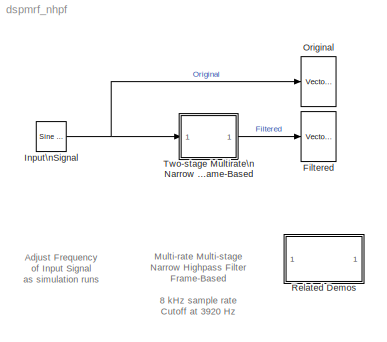
MODEL dspmrf_nhpf
KIND model
CONFIG AbsTol = 1e-6
CONFIG FixedStep = auto
CONFIG MaxStep = auto
CONFIG MinStep = auto
CONFIG PreLoadFcn = load dspmrf_coeffs
CONFIG RelTol = 1e-3
CONFIG Solver = FixedStepDiscrete
CONFIG SolverMode = SingleTasking
CONFIG StartTime = 0.0
CONFIG StopTime = inf
BLOCK [Reference] Filtered  REF=dspsnks4/Vector\nScope
  AxisGrid = on
  AxisLegend = off
  AxisProperties = off
  AxisZoom = off
  DisplayProperties = off
  Domain = Time
  FigPos = [401 201 348 280]
  FrameNumber = off
  HorizSpan = 10
  InheritXIncr = on
  LineColors = |[1 0 0]
  LineProperties = off
  Memory = off
  OpenScopeAtSimStart = on
  OpenScopeImmediately = off
  Ports = [1]
  ScopeProperties = on
  SourceBlock = dspsnks4/Vector\nScope
  SourceType = Vector Scope
  XIncr = 1
  XLabel = Samples
  XRange = [0...Fs/2]
  XUnits = Hertz
  YLabel = Amplitude
  YMax = 1.1025
  YMin = -1.1025
  YUnits = dB
BLOCK [Reference] Input\nSignal  REF=dspsrcs4/Sine Wave
  Amplitude = 1
  CompMethod = Trigonometric fcn
  Frequency = 4000-40
  OutComplex = Real
  Phase = 0
  Ports = [0, 1]
  ResetState = Restart at time zero
  SampleMode = Discrete
  SampleTime = 1/8000
  SamplesPerFrame = 48
  SourceBlock = dspsrcs4/Sine Wave
  SourceType = Sine Wave
  TableSize = Speed
  additionalParams = off
  dataType = double
  fracBitsMode = Best precision
  numFracBits = 14
  udDataType = sfix(16)
  wordLen = 16
BLOCK [Reference] Original  REF=dspsnks4/Vector\nScope
  AxisGrid = on
  AxisLegend = off
  AxisProperties = off
  AxisZoom = off
  DisplayProperties = off
  Domain = Time
  FigPos = [86 200 303 280]
  FrameNumber = off
  HorizSpan = 10
  InheritXIncr = on
  LineColors = |[1 0 0]
  LineProperties = off
  Memory = off
  OpenScopeAtSimStart = on
  OpenScopeImmediately = off
  Ports = [1]
  ScopeProperties = on
  SourceBlock = dspsnks4/Vector\nScope
  SourceType = Vector Scope
  XIncr = 1
  XLabel = Samples
  XRange = [0...Fs/2]
  XUnits = Hertz
  YLabel = Amplitude
  YMax = 1.1025
  YMin = -1.1025
  YUnits = dB
BLOCK [SubSystem] Related Demos
  MaskDisplay = disp('Other\\nMultirate Filter\\nDemos')
  MaskIconFrame = on
  MaskIconOpaque = on
  MaskIconRotate = none
  MaskIconUnits = autoscale
  OpenFcn = dspmrf_menu
  Ports = []
  TreatAsAtomicUnit = off
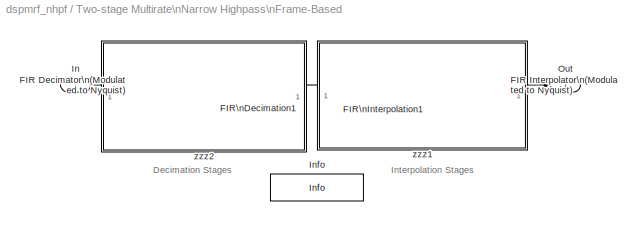
BLOCK [SubSystem] Two-stage Multirate\nNarrow Highpass\nFrame-Based
  Ports = [1, 1]
  TreatAsAtomicUnit = off
BLOCK [Reference] Two-stage Multirate\nNarrow Highpass\nFrame-Based/FIR Decimator\n(Modulated to Nyquist)  REF=dspmlti3/FIR\nDecimation
  D = 12
  Ports = [1, 1]
  SourceBlock = dspmlti3/FIR\nDecimation
  SourceType = FIR Decimation
  framing = Maintain input frame rate
  h = mrf_firdn1 .* ((-1).^(0:684))
  outputBufInitCond = 0
BLOCK [Reference] Two-stage Multirate\nNarrow Highpass\nFrame-Based/FIR Interpolator\n(Modulated to Nyquist)  REF=dspmlti3/FIR\nInterpolation
  L = 12
  Ports = [1, 1]
  SourceBlock = dspmlti3/FIR\nInterpolation
  SourceType = FIR Interpolation
  framing = Maintain input frame rate
  h = mrf_upfir1 .* ((-1).^(0:684))
  outputBufInitCond = 0
BLOCK [Reference] Two-stage Multirate\nNarrow Highpass\nFrame-Based/FIR\nDecimation1  REF=dspmlti3/FIR\nDecimation
  D = 4
  Ports = [1, 1]
  SourceBlock = dspmlti3/FIR\nDecimation
  SourceType = FIR Decimation
  framing = Maintain input frame rate
  h = mrf_firdn2
  outputBufInitCond = 0
BLOCK [Reference] Two-stage Multirate\nNarrow Highpass\nFrame-Based/FIR\nInterpolation1  REF=dspmlti3/FIR\nInterpolation
  L = 4
  Ports = [1, 1]
  SourceBlock = dspmlti3/FIR\nInterpolation
  SourceType = FIR Interpolation
  framing = Maintain input frame rate
  h = mrf_upfir2
  outputBufInitCond = 0
BLOCK [Inport] Two-stage Multirate\nNarrow Highpass\nFrame-Based/In
BLOCK [Reference] Two-stage Multirate\nNarrow Highpass\nFrame-Based/Info  REF=dspmrf_lib/Info
  Ports = []
  SourceBlock = dspmrf_lib/Info
BLOCK [Outport] Two-stage Multirate\nNarrow Highpass\nFrame-Based/Out
BLOCK [SubSystem] Two-stage Multirate\nNarrow Highpass\nFrame-Based/zzz1
  MaskDisplay = disp('')
  MaskIconFrame = on
  MaskIconOpaque = on
  MaskIconRotate = none
  MaskIconUnits = autoscale
  OpenFcn = dspmsmrff;
  Ports = []
  TreatAsAtomicUnit = off
BLOCK [SubSystem] Two-stage Multirate\nNarrow Highpass\nFrame-Based/zzz2
  MaskDisplay = disp('')
  MaskIconFrame = on
  MaskIconOpaque = on
  MaskIconRotate = none
  MaskIconUnits = autoscale
  OpenFcn = dspmsmrff;
  Ports = []
  TreatAsAtomicUnit = off
ANNOTATION (root): Adjust Frequency\nof Input Signal\nas simulation runs
ANNOTATION (root): Multi-rate Multi-stage\nNarrow Highpass Filter\nFrame-Based\n\n8 kHz sample rate\nCutoff at 3920 Hz
ANNOTATION Two-stage Multirate\nNarrow Highpass\nFrame-Based: Decimation Stages
ANNOTATION Two-stage Multirate\nNarrow Highpass\nFrame-Based: Interpolation Stages
NET Input\nSignal:1 -> Original:1, Two-stage Multirate\nNarrow Highpass\nFrame-Based:1
LINE Two-stage Multirate\nNarrow Highpass\nFrame-Based/FIR Decimator\n(Modulated to Nyquist):1 -> Two-stage Multirate\nNarrow Highpass\nFrame-Based/FIR\nDecimation1:1
LINE Two-stage Multirate\nNarrow Highpass\nFrame-Based/FIR Interpolator\n(Modulated to Nyquist):1 -> Two-stage Multirate\nNarrow Highpass\nFrame-Based/Out:1
LINE Two-stage Multirate\nNarrow Highpass\nFrame-Based/FIR\nDecimation1:1 -> Two-stage Multirate\nNarrow Highpass\nFrame-Based/FIR\nInterpolation1:1
LINE Two-stage Multirate\nNarrow Highpass\nFrame-Based/FIR\nInterpolation1:1 -> Two-stage Multirate\nNarrow Highpass\nFrame-Based/FIR Interpolator\n(Modulated to Nyquist):1
LINE Two-stage Multirate\nNarrow Highpass\nFrame-Based/In:1 -> Two-stage Multirate\nNarrow Highpass\nFrame-Based/FIR Decimator\n(Modulated to Nyquist):1
LINE Two-stage Multirate\nNarrow Highpass\nFrame-Based:1 -> Filtered:1
note: NET lines group one-source signal fan-out (src -> all destinations, sorted); 1:1 wires keep LINE
